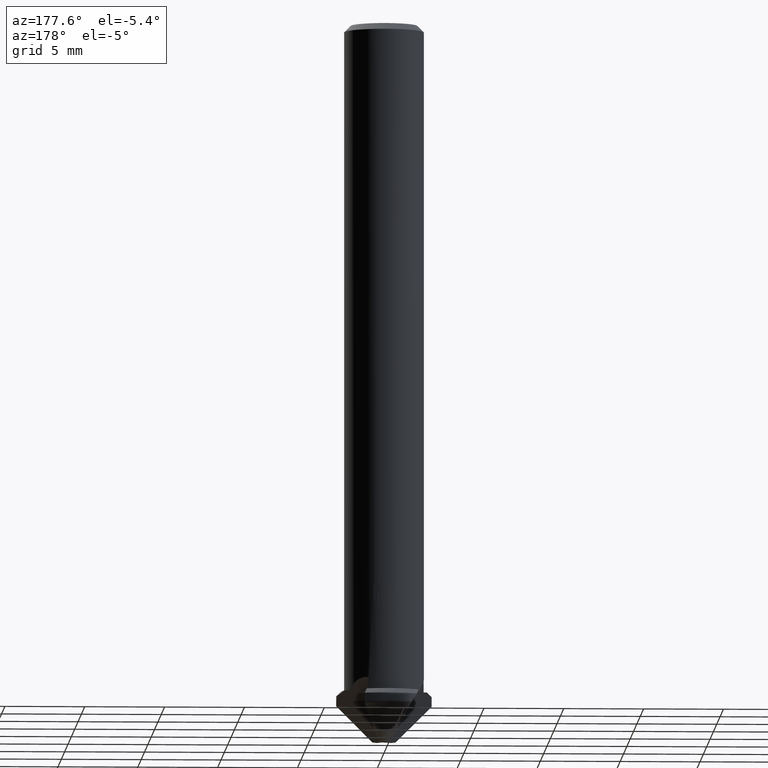
[diagram: clean part render]
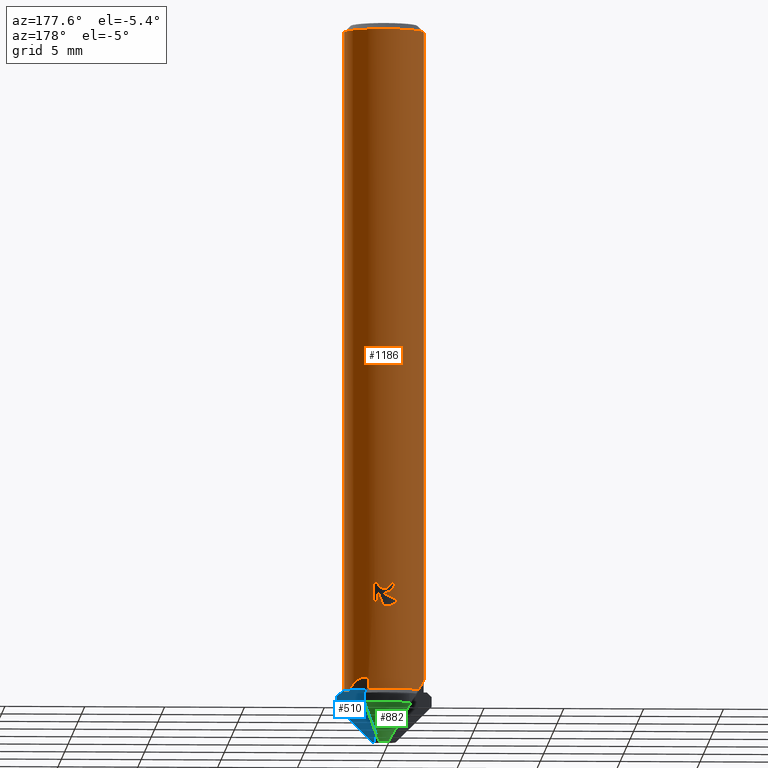
[diagram: same view with three faces highlighted in distinct colors, each labeled with its STEP entity id]
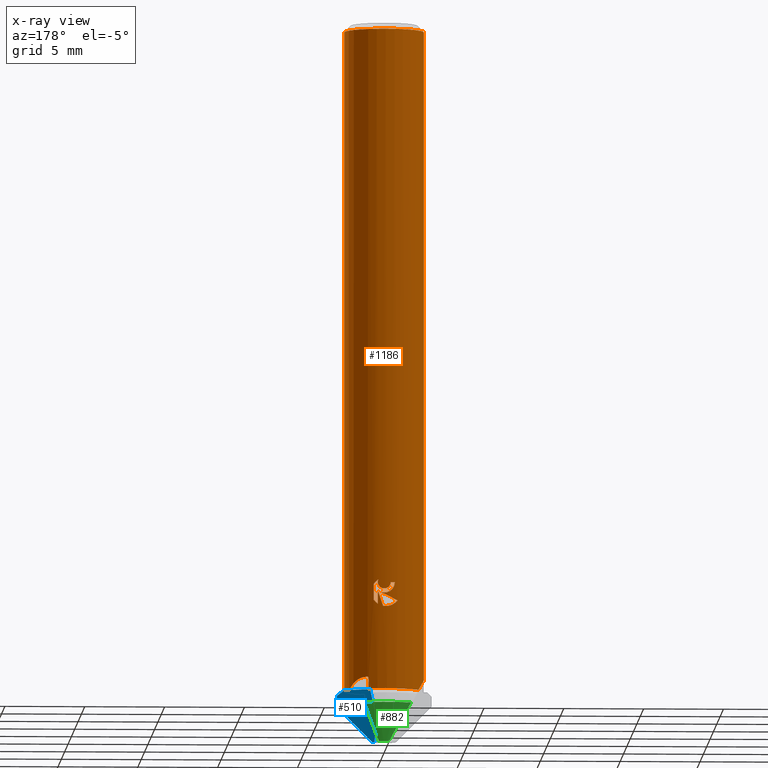
[diagram: x-ray of the same camera — body ghosted, the three highlighted faces saturated]
A machine part, auxiliary view with three faces highlighted in distinct colors.
The next image is the same camera in x-ray (body ghosted, the three faces saturated) — at least one of them is partly hidden behind the body in this view.
Their STEP definitions:

[orange] entity #1186 — the highlighted cylindrical surface (partial cylindrical patch) has radius 2.5 mm, axis along (-0, -0, 1).
#472=VERTEX_POINT('',#1338);
#482=EDGE_CURVE('',#608,#932,#1349,.T.);
#484=VERTEX_POINT('',#1351);
#494=VERTEX_POINT('',#1363);
#542=VERTEX_POINT('',#1417);
#584=EDGE_CURVE('',#798,#914,#1465,.T.);
#590=VERTEX_POINT('',#1472);
#608=VERTEX_POINT('',#1490);
#624=EDGE_CURVE('',#1290,#1196,#1507,.T.);
#626=VERTEX_POINT('',#1509);
#632=EDGE_CURVE('',#988,#798,#1515,.T.);
#634=EDGE_CURVE('',#742,#608,#1517,.T.);
#636=EDGE_CURVE('',#956,#494,#1519,.T.);
#642=EDGE_CURVE('',#932,#1290,#1525,.T.);
#656=EDGE_CURVE('',#812,#762,#1541,.T.);
#660=EDGE_CURVE('',#542,#590,#1545,.T.);
#710=VERTEX_POINT('',#1604);
#724=EDGE_CURVE('',#934,#878,#1620,.T.);
#742=VERTEX_POINT('',#1639);
#760=VERTEX_POINT('',#1660);
#762=VERTEX_POINT('',#1662);
#782=VERTEX_POINT('',#1683);
#798=VERTEX_POINT('',#1701);
#812=VERTEX_POINT('',#1716);
#814=EDGE_CURVE('',#494,#934,#1718,.T.);
#832=EDGE_CURVE('',#878,#742,#1739,.T.);
#878=VERTEX_POINT('',#1786);
#880=EDGE_CURVE('',#914,#956,#1788,.T.);
#896=VERTEX_POINT('',#1806);
#898=EDGE_CURVE('',#782,#988,#1808,.T.);
#914=VERTEX_POINT('',#1824);
#932=VERTEX_POINT('',#1842);
#934=VERTEX_POINT('',#1844);
#956=VERTEX_POINT('',#1869);
#988=VERTEX_POINT('',#1904);
#994=VERTEX_POINT('',#1911);
#1060=EDGE_CURVE('',#484,#760,#1983,.T.);
#1080=EDGE_CURVE('',#472,#760,#2004,.T.);
#1094=EDGE_CURVE('',#626,#782,#2020,.T.);
#1116=EDGE_CURVE('',#896,#542,#2042,.T.);
#1120=EDGE_CURVE('',#484,#762,#2046,.T.);
#1186=ADVANCED_FACE('',(#2119,#2120),#2121,.T.);
#1196=VERTEX_POINT('',#2131);
#1210=EDGE_CURVE('',#1196,#626,#2147,.T.);
#1224=EDGE_CURVE('',#994,#472,#2161,.T.);
#1244=EDGE_CURVE('',#710,#590,#2183,.T.);
#1248=EDGE_CURVE('',#812,#710,#2187,.T.);
#1280=EDGE_CURVE('',#896,#994,#2220,.T.);
#1290=VERTEX_POINT('',#2230);
#1338=CARTESIAN_POINT('',(1.05679381825682,2.26565373031586,-41.271066367513));
#1349=ELLIPSE('',#2315,2.78732108010715,2.5);
#1351=CARTESIAN_POINT('',(-2.09320436326517,1.36692922040889,-41.85));
#1363=CARTESIAN_POINT('',(-0.270210525197664,2.48535435543353,-35.3573798608818));
#1417=CARTESIAN_POINT('',(2.5,3.06151588455594E-016,-41.85));
#1465=B_SPLINE_CURVE_WITH_KNOTS('',3,(#2546,#2547,#2548,#2549,#2550,#2551),.UNSPECIFIED.,.F.,.F.,(4,2,4),(0.344302197119824,0.688604394239647,1.03242207268003),.UNSPECIFIED.);
#1472=CARTESIAN_POINT('',(2.5,3.06151588455594E-016,-0.399999999999999));
#1490=CARTESIAN_POINT('',(0.318403909431595,2.47964089143139,-35.7946277612708));
#1507=B_SPLINE_CURVE_WITH_KNOTS('',3,(#2670,#2671,#2672,#2673,#2674,#2675,#2676,#2677,#2678,#2679),.UNSPECIFIED.,.F.,.F.,(4,2,2,2,4),(3.09837550339328,3.44278385228406,3.78723916731241,4.13169448234076,4.47551218078378),.UNSPECIFIED.);
#1509=CARTESIAN_POINT('',(0.485311546392265,2.45244219155893,-35.7332739790272));
#1515=LINE('',#2690,#2691);
#1517=B_SPLINE_CURVE_WITH_KNOTS('',3,(#2694,#2695,#2696,#2697,#2698,#2699,#2700,#2701,#2702,#2703,#2704,#2705,#2706,#2707),.UNSPECIFIED.,.F.,.F.,(4,2,2,2,2,2,4),(1.7426107460822,1.9913632153039,2.24011568452559,2.48886815374729,2.73698656585005,2.98510497795281,3.23493590836227),.UNSPECIFIED.);
#1519=B_SPLINE_CURVE_WITH_KNOTS('',3,(#2710,#2711,#2712,#2713,#2714,#2715,#2716,#2717,#2718,#2719,#2720,#2721,#2722,#2723,#2724,#2725,#2726,#2727,#2728,#2729,#2730,#2731,#2732,#2733,#2734,#2735,#2736),.UNSPECIFIED.,.F.,.F.,(4,2,3,2,2,2,2,2,2,2,2,2,4),(-0.301503278454075,-0.150751639227038,0.0,0.150751639227038,0.301503278454075,0.452645086780626,0.603786895107177,0.754271619615112,0.904756344123047,1.05543488838393,1.20611343264482,1.35679197690571,1.5074705211666),.UNSPECIFIED.);
#1525=B_SPLINE_CURVE_WITH_KNOTS('',3,(#2745,#2746,#2747,#2748,#2749,#2750,#2751,#2752,#2753,#2754),.UNSPECIFIED.,.F.,.F.,(4,2,2,2,4),(3.09837550339328,3.44278385228406,3.78723916731241,4.13169448234076,4.47551218078378),.UNSPECIFIED.);
#1541=LINE('',#2775,#2776);
#1545=LINE('',#2808,#2809);
#1604=CARTESIAN_POINT('',(0.0,2.5,-0.399999999999999));
#1620=CIRCLE('',#2926,2.5);
#1639=CARTESIAN_POINT('',(2.94648960573711E-016,2.5,-35.8333778656602));
#1660=CARTESIAN_POINT('',(1.07510205301384,2.25702360989101,-41.85));
#1662=CARTESIAN_POINT('',(-2.5,-2.476560133496E-016,-41.1100794319298));
#1683=CARTESIAN_POINT('',(0.485311546392265,2.45244219155893,-36.5326306581503));
#1701=CARTESIAN_POINT('',(0.742894482122776,2.38707096426385,-35.2861380208401));
#1716=CARTESIAN_POINT('',(-2.5,-3.06151588455594E-016,-0.399999999999999));
#1718=B_SPLINE_CURVE_WITH_KNOTS('',3,(#3155,#3156,#3157,#3158,#3159,#3160,#3161,#3162,#3163,#3164,#3165,#3166,#3167,#3168,#3169,#3170,#3171,#3172,#3173,#3174,#3175,#3176,#3177,#3178,#3179,#3180,#3181),.UNSPECIFIED.,.F.,.F.,(4,2,3,2,2,2,2,2,2,2,2,2,4),(-0.301503278454075,-0.150751639227038,0.0,0.150751639227038,0.301503278454075,0.452645086780626,0.603786895107177,0.754271619615112,0.904756344123047,1.05543488838393,1.20611343264482,1.35679197690571,1.5074705211666),.UNSPECIFIED.);
#1739=B_SPLINE_CURVE_WITH_KNOTS('',3,(#3207,#3208,#3209,#3210,#3211,#3212,#3213,#3214,#3215,#3216,#3217,#3218,#3219,#3220),.UNSPECIFIED.,.F.,.F.,(4,2,2,2,2,2,4),(1.7426107460822,1.9913632153039,2.24011568452559,2.48886815374729,2.73698656585005,2.98510497795281,3.23493590836227),.UNSPECIFIED.);
#1786=CARTESIAN_POINT('',(-0.575040781099412,2.43296693361677,-35.1761789996285));
#1788=B_SPLINE_CURVE_WITH_KNOTS('',3,(#3343,#3344,#3345,#3346,#3347,#3348,#3349,#3350,#3351,#3352,#3353,#3354,#3355,#3356,#3357,#3358,#3359,#3360,#3361,#3362,#3363,#3364,#3365,#3366,#3367,#3368,#3369),.UNSPECIFIED.,.F.,.F.,(4,2,3,2,2,2,2,2,2,2,2,2,4),(-0.301503278454075,-0.150751639227038,0.0,0.150751639227038,0.301503278454075,0.452645086780626,0.603786895107177,0.754271619615112,0.904756344123047,1.05543488838393,1.20611343264482,1.35679197690571,1.5074705211666),.UNSPECIFIED.);
#1806=CARTESIAN_POINT('',(2.23039761168194,1.12930354369563,-41.85));
#1808=B_SPLINE_CURVE_WITH_KNOTS('',3,(#3413,#3414,#3415,#3416,#3417,#3418),.UNSPECIFIED.,.F.,.F.,(4,2,4),(4.47551170548333,4.81932937236525,5.16363155748401),.UNSPECIFIED.);
#1824=CARTESIAN_POINT('',(0.444128737768459,2.46023366050629,-35.0000001538183));
#1842=CARTESIAN_POINT('',(-0.742807086176167,2.38709816151881,-36.3178224420131));
#1844=CARTESIAN_POINT('',(-0.312407772973711,2.48040347189436,-35.1761789996285));
#1869=CARTESIAN_POINT('',(-5.97332878342138E-015,2.5,-35.5684826743449));
#1904=CARTESIAN_POINT('',(0.742894482122777,2.38707096426385,-36.2723142805034));
#1911=CARTESIAN_POINT('',(1.11945875477982,2.23535502691336,-41.1139234402125));
#1983=CIRCLE('',#3675,2.5);
#2004=ELLIPSE('',#3708,71.6342708696101,2.5);
#2020=LINE('',#3753,#3754);
#2042=CIRCLE('',#3794,2.5);
#2046=ELLIPSE('',#3799,5.00306602403646,2.5);
#2119=FACE_OUTER_BOUND('',#3966,.T.);
#2120=FACE_BOUND('',#3967,.T.);
#2121=CYLINDRICAL_SURFACE('',#3968,2.5);
#2131=CARTESIAN_POINT('',(0.161168404231131,2.49479954013897,-36.6665738361236));
#2147=ELLIPSE('',#4034,7.61998643342443,2.5);
#2161=B_SPLINE_CURVE_WITH_KNOTS('',3,(#4064,#4065,#4066,#4067,#4068,#4069,#4070,#4071,#4072,#4073,#4074,#4075,#4076,#4077),.UNSPECIFIED.,.F.,.F.,(4,2,2,2,2,2,4),(0.184157600930737,0.192742132728682,0.206598262560849,0.234310522225183,0.293125424812681,0.351940327400179,0.362202442003439),.UNSPECIFIED.);
#2183=CIRCLE('',#4106,2.5);
#2187=CIRCLE('',#4111,2.5);
#2220=ELLIPSE('',#4178,5.00306602403646,2.5);
#2230=CARTESIAN_POINT('',(-9.27653320671539E-016,2.5,-36.683902981203));
#2315=AXIS2_PLACEMENT_3D('',#4259,#4260,#4261);
#2546=CARTESIAN_POINT('',(0.819572248707612,2.36184278247904,-35.4315007254576));
#2547=CARTESIAN_POINT('',(0.773235238386737,2.37792196184694,-35.3201866872608));
#2548=CARTESIAN_POINT('',(0.703754030298735,2.40031887098004,-35.2191012528167));
#2549=CARTESIAN_POINT('',(0.544155566616611,2.44144957158242,-35.05957475698));
#2550=CARTESIAN_POINT('',(0.443078437625546,2.46298461934583,-34.990117951483));
#2551=CARTESIAN_POINT('',(0.33176973658968,2.47788798009176,-34.9438141461958));
#2670=CARTESIAN_POINT('',(-0.851106475177585,2.35066326127559,-36.1269024909624));
#2671=CARTESIAN_POINT('',(-0.804803660480817,2.36742814224895,-36.2381528911139));
#2672=CARTESIAN_POINT('',(-0.735407248289793,2.39081527433525,-36.3391384186257));
#2673=CARTESIAN_POINT('',(-0.575994604090084,2.43414329353883,-36.4986257124624));
#2674=CARTESIAN_POINT('',(-0.474957233154073,2.45704682104698,-36.5681296877785));
#2675=CARTESIAN_POINT('',(-0.252286582505711,2.48978210591063,-36.6608653102068));
#2676=CARTESIAN_POINT('',(-0.130572918570901,2.49922667773841,-36.6840401886507));
#2677=CARTESIAN_POINT('',(0.0988468623720696,2.50067267150162,-36.6840401886507));
#2678=CARTESIAN_POINT('',(0.220461194614961,2.49279132706837,-36.6609421952063));
#2679=CARTESIAN_POINT('',(0.331769901216233,2.47788795804955,-36.6146383873412));
#2690=CARTESIAN_POINT('',(0.742894482122777,2.38707096426385,-35.7792261506717));
#2691=VECTOR('',#4446,1.0);
#2694=CARTESIAN_POINT('',(-0.524781511497588,2.44430038358429,-34.9291582621933));
#2695=CARTESIAN_POINT('',(-0.558417432003994,2.4370788892112,-35.010136782394));
#2696=CARTESIAN_POINT('',(-0.575060566651156,2.4329622571431,-35.0983613221402));
#2697=CARTESIAN_POINT('',(-0.575060566651156,2.4329622571431,-35.2641963016213));
#2698=CARTESIAN_POINT('',(-0.558417432003994,2.4370788892112,-35.3524208413676));
#2699=CARTESIAN_POINT('',(-0.491145590991195,2.4515218779574,-35.5143778817689));
#2700=CARTESIAN_POINT('',(-0.440532304120222,2.4615878504116,-35.5881399013442));
#2701=CARTESIAN_POINT('',(-0.324026998725568,2.47961130516434,-35.7044707001471));
#2702=CARTESIAN_POINT('',(-0.250316671775757,2.48875757251386,-35.7549419914583));
#2703=CARTESIAN_POINT('',(-0.0885452067588335,2.49974647452028,-35.8219834671733));
#2704=CARTESIAN_POINT('',(-0.000462669095395662,2.50136764412902,-35.838538129503));
#2705=CARTESIAN_POINT('',(0.165430701833303,2.49591020226218,-35.838538129503));
#2706=CARTESIAN_POINT('',(0.253778343542199,2.48842727297033,-35.821778246351));
#2707=CARTESIAN_POINT('',(0.334735715041448,2.47748905165607,-35.7880859413538));
#2710=CARTESIAN_POINT('',(0.369548811999049,2.47253587952735,-34.8964786191432));
#2711=CARTESIAN_POINT('',(0.404861108035139,2.4672580523552,-34.9318382529565));
#2712=CARTESIAN_POINT('',(0.435531120364256,2.46185739730343,-34.976630107659));
#2713=CARTESIAN_POINT('',(0.476270835819975,2.45430138702185,-35.0749257442502));
#2714=CARTESIAN_POINT('',(0.48633387941076,2.45223966156191,-35.128439460941));
#2715=CARTESIAN_POINT('',(0.48633387941076,2.45223966156191,-35.17869000735));
#2716=CARTESIAN_POINT('',(0.48633387941076,2.45223966156191,-35.228940553759));
#2717=CARTESIAN_POINT('',(0.476270835819975,2.45430138702185,-35.2824542704499));
#2718=CARTESIAN_POINT('',(0.435531120364256,2.46185739730343,-35.3807499070411));
#2719=CARTESIAN_POINT('',(0.404861108035139,2.4672580523552,-35.4255417617436));
#2720=CARTESIAN_POINT('',(0.334145122152473,2.47782736655147,-35.4963525456982));
#2721=CARTESIAN_POINT('',(0.289305325260424,2.48369608192703,-35.527107641238));
#2722=CARTESIAN_POINT('',(0.190892767318426,2.49319147877631,-35.5679670750413));
#2723=CARTESIAN_POINT('',(0.137309222045896,2.49673474415629,-35.5780647804754));
#2724=CARTESIAN_POINT('',(0.0368278859231848,2.50023196731992,-35.5780647804754));
#2725=CARTESIAN_POINT('',(-0.0166543724400533,2.50042853478556,-35.5680454936543));
#2726=CARTESIAN_POINT('',(-0.115011831478481,2.49783756564824,-35.5273175845606));
#2727=CARTESIAN_POINT('',(-0.159890289496504,2.49513488917208,-35.4966114745342));
#2728=CARTESIAN_POINT('',(-0.230796640598874,2.48957811407573,-35.425765774382));
#2729=CARTESIAN_POINT('',(-0.261552287839775,2.48636524822382,-35.3808734168709));
#2730=CARTESIAN_POINT('',(-0.302363265727945,2.48173290383039,-35.2824513169887));
#2731=CARTESIAN_POINT('',(-0.312415666839968,2.48040247764611,-35.2289161887703));
#2732=CARTESIAN_POINT('',(-0.312415666839968,2.48040247764611,-35.1284638259297));
#2733=CARTESIAN_POINT('',(-0.302363265727943,2.48173290383039,-35.0749286977114));
#2734=CARTESIAN_POINT('',(-0.261552287839771,2.48636524822382,-34.9765065978292));
#2735=CARTESIAN_POINT('',(-0.230796640598876,2.48957811407573,-34.931614240318));
#2736=CARTESIAN_POINT('',(-0.195320648434777,2.49235828971178,-34.8961685931456));
#2745=CARTESIAN_POINT('',(-0.851106475177585,2.35066326127559,-36.1269024909624));
#2746=CARTESIAN_POINT('',(-0.804803660480817,2.36742814224895,-36.2381528911139));
#2747=CARTESIAN_POINT('',(-0.735407248289793,2.39081527433525,-36.3391384186257));
#2748=CARTESIAN_POINT('',(-0.575994604090084,2.43414329353883,-36.4986257124624));
#2749=CARTESIAN_POINT('',(-0.474957233154073,2.45704682104698,-36.5681296877785));
#2750=CARTESIAN_POINT('',(-0.252286582505711,2.48978210591063,-36.6608653102068));
#2751=CARTESIAN_POINT('',(-0.130572918570901,2.49922667773841,-36.6840401886507));
#2752=CARTESIAN_POINT('',(0.0988468623720696,2.50067267150162,-36.6840401886507));
#2753=CARTESIAN_POINT('',(0.220461194614961,2.49279132706837,-36.6609421952063));
#2754=CARTESIAN_POINT('',(0.331769901216233,2.47788795804955,-36.6146383873412));
#2775=CARTESIAN_POINT('',(-2.5,-3.06151588455594E-016,-40.925));
#2776=VECTOR('',#4466,1.0);
#2808=CARTESIAN_POINT('',(2.5,3.06151588455594E-016,-40.925));
#2809=VECTOR('',#4467,1.0);
#2926=AXIS2_PLACEMENT_3D('',#4589,#4590,#4591);
#3155=CARTESIAN_POINT('',(0.369548811999049,2.47253587952735,-34.8964786191432));
#3156=CARTESIAN_POINT('',(0.404861108035139,2.4672580523552,-34.9318382529565));
#3157=CARTESIAN_POINT('',(0.435531120364256,2.46185739730343,-34.976630107659));
#3158=CARTESIAN_POINT('',(0.476270835819975,2.45430138702185,-35.0749257442502));
#3159=CARTESIAN_POINT('',(0.48633387941076,2.45223966156191,-35.128439460941));
#3160=CARTESIAN_POINT('',(0.48633387941076,2.45223966156191,-35.17869000735));
#3161=CARTESIAN_POINT('',(0.48633387941076,2.45223966156191,-35.228940553759));
#3162=CARTESIAN_POINT('',(0.476270835819975,2.45430138702185,-35.2824542704499));
#3163=CARTESIAN_POINT('',(0.435531120364256,2.46185739730343,-35.3807499070411));
#3164=CARTESIAN_POINT('',(0.404861108035139,2.4672580523552,-35.4255417617436));
#3165=CARTESIAN_POINT('',(0.334145122152473,2.47782736655147,-35.4963525456982));
#3166=CARTESIAN_POINT('',(0.289305325260424,2.48369608192703,-35.527107641238));
#3167=CARTESIAN_POINT('',(0.190892767318426,2.49319147877631,-35.5679670750413));
#3168=CARTESIAN_POINT('',(0.137309222045896,2.49673474415629,-35.5780647804754));
#3169=CARTESIAN_POINT('',(0.0368278859231848,2.50023196731992,-35.5780647804754));
#3170=CARTESIAN_POINT('',(-0.0166543724400533,2.50042853478556,-35.5680454936543));
#3171=CARTESIAN_POINT('',(-0.115011831478481,2.49783756564824,-35.5273175845606));
#3172=CARTESIAN_POINT('',(-0.159890289496504,2.49513488917208,-35.4966114745342));
#3173=CARTESIAN_POINT('',(-0.230796640598874,2.48957811407573,-35.425765774382));
#3174=CARTESIAN_POINT('',(-0.261552287839775,2.48636524822382,-35.3808734168709));
#3175=CARTESIAN_POINT('',(-0.302363265727945,2.48173290383039,-35.2824513169887));
#3176=CARTESIAN_POINT('',(-0.312415666839968,2.48040247764611,-35.2289161887703));
#3177=CARTESIAN_POINT('',(-0.312415666839968,2.48040247764611,-35.1284638259297));
#3178=CARTESIAN_POINT('',(-0.302363265727943,2.48173290383039,-35.0749286977114));
#3179=CARTESIAN_POINT('',(-0.261552287839771,2.48636524822382,-34.9765065978292));
#3180=CARTESIAN_POINT('',(-0.230796640598876,2.48957811407573,-34.931614240318));
#3181=CARTESIAN_POINT('',(-0.195320648434777,2.49235828971178,-34.8961685931456));
#3207=CARTESIAN_POINT('',(-0.524781511497588,2.44430038358429,-34.9291582621933));
#3208=CARTESIAN_POINT('',(-0.558417432003994,2.4370788892112,-35.010136782394));
#3209=CARTESIAN_POINT('',(-0.575060566651156,2.4329622571431,-35.0983613221402));
#3210=CARTESIAN_POINT('',(-0.575060566651156,2.4329622571431,-35.2641963016213));
#3211=CARTESIAN_POINT('',(-0.558417432003994,2.4370788892112,-35.3524208413676));
#3212=CARTESIAN_POINT('',(-0.491145590991195,2.4515218779574,-35.5143778817689));
#3213=CARTESIAN_POINT('',(-0.440532304120222,2.4615878504116,-35.5881399013442));
#3214=CARTESIAN_POINT('',(-0.324026998725568,2.47961130516434,-35.7044707001471));
#3215=CARTESIAN_POINT('',(-0.250316671775757,2.48875757251386,-35.7549419914583));
#3216=CARTESIAN_POINT('',(-0.0885452067588335,2.49974647452028,-35.8219834671733));
#3217=CARTESIAN_POINT('',(-0.000462669095395662,2.50136764412902,-35.838538129503));
#3218=CARTESIAN_POINT('',(0.165430701833303,2.49591020226218,-35.838538129503));
#3219=CARTESIAN_POINT('',(0.253778343542199,2.48842727297033,-35.821778246351));
#3220=CARTESIAN_POINT('',(0.334735715041448,2.47748905165607,-35.7880859413538));
#3343=CARTESIAN_POINT('',(0.369548811999049,2.47253587952735,-34.8964786191432));
#3344=CARTESIAN_POINT('',(0.404861108035139,2.4672580523552,-34.9318382529565));
#3345=CARTESIAN_POINT('',(0.435531120364256,2.46185739730343,-34.976630107659));
#3346=CARTESIAN_POINT('',(0.476270835819975,2.45430138702185,-35.0749257442502));
#3347=CARTESIAN_POINT('',(0.48633387941076,2.45223966156191,-35.128439460941));
#3348=CARTESIAN_POINT('',(0.48633387941076,2.45223966156191,-35.17869000735));
#3349=CARTESIAN_POINT('',(0.48633387941076,2.45223966156191,-35.228940553759));
#3350=CARTESIAN_POINT('',(0.476270835819975,2.45430138702185,-35.2824542704499));
#3351=CARTESIAN_POINT('',(0.435531120364256,2.46185739730343,-35.3807499070411));
#3352=CARTESIAN_POINT('',(0.404861108035139,2.4672580523552,-35.4255417617436));
#3353=CARTESIAN_POINT('',(0.334145122152473,2.47782736655147,-35.4963525456982));
#3354=CARTESIAN_POINT('',(0.289305325260424,2.48369608192703,-35.527107641238));
#3355=CARTESIAN_POINT('',(0.190892767318426,2.49319147877631,-35.5679670750413));
#3356=CARTESIAN_POINT('',(0.137309222045896,2.49673474415629,-35.5780647804754));
#3357=CARTESIAN_POINT('',(0.0368278859231848,2.50023196731992,-35.5780647804754));
#3358=CARTESIAN_POINT('',(-0.0166543724400533,2.50042853478556,-35.5680454936543));
#3359=CARTESIAN_POINT('',(-0.115011831478481,2.49783756564824,-35.5273175845606));
#3360=CARTESIAN_POINT('',(-0.159890289496504,2.49513488917208,-35.4966114745342));
#3361=CARTESIAN_POINT('',(-0.230796640598874,2.48957811407573,-35.425765774382));
#3362=CARTESIAN_POINT('',(-0.261552287839775,2.48636524822382,-35.3808734168709));
#3363=CARTESIAN_POINT('',(-0.302363265727945,2.48173290383039,-35.2824513169887));
#3364=CARTESIAN_POINT('',(-0.312415666839968,2.48040247764611,-35.2289161887703));
#3365=CARTESIAN_POINT('',(-0.312415666839968,2.48040247764611,-35.1284638259297));
#3366=CARTESIAN_POINT('',(-0.302363265727943,2.48173290383039,-35.0749286977114));
#3367=CARTESIAN_POINT('',(-0.261552287839771,2.48636524822382,-34.9765065978292));
#3368=CARTESIAN_POINT('',(-0.230796640598876,2.48957811407573,-34.931614240318));
#3369=CARTESIAN_POINT('',(-0.195320648434777,2.49235828971178,-34.8961685931456));
#3413=CARTESIAN_POINT('',(0.331769749005721,2.47788797842935,-36.6146381461851));
#3414=CARTESIAN_POINT('',(0.443078446249926,2.46298461762336,-36.5683343424503));
#3415=CARTESIAN_POINT('',(0.544155571787289,2.44144957033601,-36.4988775392922));
#3416=CARTESIAN_POINT('',(0.703754029929931,2.40031887098883,-36.3393510488815));
#3417=CARTESIAN_POINT('',(0.773235235584424,2.37792196272201,-36.2382656179319));
#3418=CARTESIAN_POINT('',(0.81957224427909,2.36184278401576,-36.1269515835893));
#3675=AXIS2_PLACEMENT_3D('',#4966,#4967,#4968);
#3708=AXIS2_PLACEMENT_3D('',#4987,#4988,#4989);
#3753=CARTESIAN_POINT('',(0.485311546392265,2.45244219155893,-36.1329523185887));
#3754=VECTOR('',#5020,1.0);
#3794=AXIS2_PLACEMENT_3D('',#5032,#5033,#5034);
#3799=AXIS2_PLACEMENT_3D('',#5035,#5036,#5037);
#3966=EDGE_LOOP('',(#5129,#5130,#5131,#5132,#5133,#5134,#5135,#5136,#5137,#5138));
#3967=EDGE_LOOP('',(#5139,#5140,#5141,#5142,#5143,#5144,#5145,#5146,#5147,#5148,#5149,#5150,#5151,#5152));
#3968=AXIS2_PLACEMENT_3D('',#5153,#5154,#5155);
#4034=AXIS2_PLACEMENT_3D('',#5187,#5188,#5189);
#4064=CARTESIAN_POINT('',(1.11945875477982,2.23535502691336,-41.1139234402125));
#4065=CARTESIAN_POINT('',(1.11693606443682,2.23661838228915,-41.1141415635389));
#4066=CARTESIAN_POINT('',(1.11444545191005,2.23786028227054,-41.1146868102748));
#4067=CARTESIAN_POINT('',(1.1080962719998,2.24101358464992,-41.1168822783324));
#4068=CARTESIAN_POINT('',(1.10433753422275,2.24286731841524,-41.1190137653241));
#4069=CARTESIAN_POINT('',(1.0938374500817,2.24801699691509,-41.1270811254951));
#4070=CARTESIAN_POINT('',(1.08786706242935,2.2509046387973,-41.1347420055017));
#4071=CARTESIAN_POINT('',(1.0733978304308,2.25786097566766,-41.1587030992715));
#4072=CARTESIAN_POINT('',(1.0668940735108,2.26091992752144,-41.1784935888278));
#4073=CARTESIAN_POINT('',(1.05842558371533,2.26489672305205,-41.2196343927208));
#4074=CARTESIAN_POINT('',(1.05662864158571,2.26573076815864,-41.2410271209171));
#4075=CARTESIAN_POINT('',(1.05662864158571,2.26573076815864,-41.264052793314));
#4076=CARTESIAN_POINT('',(1.05668194620784,2.26570591202757,-41.2675362337877));
#4077=CARTESIAN_POINT('',(1.05679381825682,2.26565373031586,-41.271066367513));
#4106=AXIS2_PLACEMENT_3D('',#5220,#5221,#5222);
#4111=AXIS2_PLACEMENT_3D('',#5223,#5224,#5225);
#4178=AXIS2_PLACEMENT_3D('',#5252,#5253,#5254);
#4259=CARTESIAN_POINT('',(0.0,0.0,-35.9516061872687));
#4260=DIRECTION('',(-0.442195774284071,0.0,0.896918556617774));
#4261=DIRECTION('',(-0.896918556617774,0.0,-0.442195774284071));
#4446=DIRECTION('',(-0.0,-0.0,1.0));
#4466=DIRECTION('',(0.0,0.0,-1.0));
#4467=DIRECTION('',(-0.0,-0.0,1.0));
#4589=CARTESIAN_POINT('',(0.0,0.0,-35.1761789996285));
#4590=DIRECTION('',(0.0,0.0,1.0));
#4591=DIRECTION('',(-1.0,0.0,0.0));
#4966=CARTESIAN_POINT('',(0.0,0.0,-41.85));
#4967=DIRECTION('',(0.0,0.0,-1.0));
#4968=DIRECTION('',(-1.0,0.0,0.0));
#4987=CARTESIAN_POINT('',(0.0,0.0,-45.01));
#4988=DIRECTION('',(-0.882409725041803,0.469185573394539,-0.0348994967025007));
#4989=DIRECTION('',(-0.030814426605461,0.016384321257364,0.999390827019096));
#5020=DIRECTION('',(0.0,0.0,-1.0));
#5032=CARTESIAN_POINT('',(0.0,0.0,-41.85));
#5033=DIRECTION('',(0.0,0.0,-1.0));
#5034=DIRECTION('',(-1.0,0.0,0.0));
#5035=CARTESIAN_POINT('',(0.0,0.0,-45.4432782267687));
#5036=DIRECTION('',(0.866108656975691,0.0127324361655803,0.499693585491204));
#5037=DIRECTION('',(-0.49963959942913,-0.00734507068401933,0.866202240021893));
#5129=ORIENTED_EDGE('',*,*,#656,.F.);
#5130=ORIENTED_EDGE('',*,*,#1248,.T.);
#5131=ORIENTED_EDGE('',*,*,#1244,.T.);
#5132=ORIENTED_EDGE('',*,*,#660,.F.);
#5133=ORIENTED_EDGE('',*,*,#1116,.F.);
#5134=ORIENTED_EDGE('',*,*,#1280,.T.);
#5135=ORIENTED_EDGE('',*,*,#1224,.T.);
#5136=ORIENTED_EDGE('',*,*,#1080,.T.);
#5137=ORIENTED_EDGE('',*,*,#1060,.F.);
#5138=ORIENTED_EDGE('',*,*,#1120,.T.);
#5139=ORIENTED_EDGE('',*,*,#482,.T.);
#5140=ORIENTED_EDGE('',*,*,#642,.T.);
#5141=ORIENTED_EDGE('',*,*,#624,.T.);
#5142=ORIENTED_EDGE('',*,*,#1210,.T.);
#5143=ORIENTED_EDGE('',*,*,#1094,.T.);
#5144=ORIENTED_EDGE('',*,*,#898,.T.);
#5145=ORIENTED_EDGE('',*,*,#632,.T.);
#5146=ORIENTED_EDGE('',*,*,#584,.T.);
#5147=ORIENTED_EDGE('',*,*,#880,.T.);
#5148=ORIENTED_EDGE('',*,*,#636,.T.);
#5149=ORIENTED_EDGE('',*,*,#814,.T.);
#5150=ORIENTED_EDGE('',*,*,#724,.T.);
#5151=ORIENTED_EDGE('',*,*,#832,.T.);
#5152=ORIENTED_EDGE('',*,*,#634,.T.);
#5153=CARTESIAN_POINT('',(0.0,0.0,-40.925));
#5154=DIRECTION('',(-0.0,-0.0,1.0));
#5155=DIRECTION('',(-1.0,0.0,0.0));
#5187=CARTESIAN_POINT('',(0.0,0.0,-37.1306232916651));
#5188=DIRECTION('',(0.944648353914092,0.0,-0.328084573619969));
#5189=DIRECTION('',(-0.328084573619969,0.0,-0.944648353914092));
#5220=CARTESIAN_POINT('',(0.0,0.0,-0.399999999999999));
#5221=DIRECTION('',(0.0,0.0,-1.0));
#5222=DIRECTION('',(0.0,1.0,0.0));
#5223=CARTESIAN_POINT('',(0.0,0.0,-0.399999999999999));
#5224=DIRECTION('',(0.0,0.0,-1.0));
#5225=DIRECTION('',(0.0,1.0,0.0));
#5252=CARTESIAN_POINT('',(0.0,0.0,-45.4432782267687));
#5253=DIRECTION('',(-0.422027715316389,-0.75643831746136,0.499693585491204));
#5254=DIRECTION('',(-0.243458781909612,-0.436373121184318,-0.866202240021893));

[blue] entity #510 — the highlighted planar face has unit normal (-0.422, -0.7564, 0.4997).
#474=VERTEX_POINT('',#1340);
#510=ADVANCED_FACE('',(#1380),#1381,.F.);
#516=EDGE_CURVE('',#1266,#1070,#1387,.T.);
#548=EDGE_CURVE('',#754,#980,#1423,.T.);
#556=EDGE_CURVE('',#670,#854,#1433,.T.);
#560=VERTEX_POINT('',#1437);
#580=EDGE_CURVE('',#1070,#670,#1461,.T.);
#670=VERTEX_POINT('',#1557);
#754=VERTEX_POINT('',#1653);
#774=EDGE_CURVE('',#1288,#1266,#1675,.T.);
#780=EDGE_CURVE('',#980,#1288,#1681,.T.);
#820=EDGE_CURVE('',#1064,#754,#1724,.T.);
#854=VERTEX_POINT('',#1761);
#980=VERTEX_POINT('',#1896);
#1004=EDGE_CURVE('',#474,#1064,#1921,.T.);
#1040=EDGE_CURVE('',#560,#1074,#1961,.T.);
#1062=EDGE_CURVE('',#1074,#474,#1985,.T.);
#1064=VERTEX_POINT('',#1987);
#1070=VERTEX_POINT('',#1993);
#1074=VERTEX_POINT('',#1997);
#1266=VERTEX_POINT('',#2205);
#1288=VERTEX_POINT('',#2228);
#1294=EDGE_CURVE('',#560,#854,#2234,.T.);
#1340=CARTESIAN_POINT('',(0.598992471401178,-0.0347565706695547,-44.99));
#1380=FACE_OUTER_BOUND('',#2400,.T.);
#1381=PLANE('',#2401);
#1387=(B_SPLINE_CURVE(2,(#2409,#2410,#2411),.UNSPECIFIED.,.F.,.F.)B_SPLINE_CURVE_WITH_KNOTS((3,3),(0.0,0.66067462479535),.UNSPECIFIED.)RATIONAL_B_SPLINE_CURVE((1.0,1.00169448352188,1.0))BOUNDED_CURVE()REPRESENTATION_ITEM('')GEOMETRIC_REPRESENTATION_ITEM()CURVE());
#1423=(B_SPLINE_CURVE(2,(#2474,#2475,#2476),.UNSPECIFIED.,.F.,.F.)B_SPLINE_CURVE_WITH_KNOTS((3,3),(0.0,3.19557728387752),.UNSPECIFIED.)RATIONAL_B_SPLINE_CURVE((1.0,1.20879147207735,1.0))BOUNDED_CURVE()REPRESENTATION_ITEM('')GEOMETRIC_REPRESENTATION_ITEM()CURVE());
#1433=LINE('',#2495,#2496);
#1437=CARTESIAN_POINT('',(0.328168773412019,0.502299966312213,-44.4057318701355));
#1461=(B_SPLINE_CURVE(2,(#2533,#2534,#2535),.UNSPECIFIED.,.F.,.F.)B_SPLINE_CURVE_WITH_KNOTS((3,3),(0.0,0.0251933624838409),.UNSPECIFIED.)RATIONAL_B_SPLINE_CURVE((1.0,1.00000275108883,1.0))BOUNDED_CURVE()REPRESENTATION_ITEM('')GEOMETRIC_REPRESENTATION_ITEM()CURVE());
#1557=CARTESIAN_POINT('',(2.52078212903208,0.967293883963141,-41.85));
#1653=CARTESIAN_POINT('',(0.740304884632136,-0.120202653006491,-45.0));
#1675=ELLIPSE('',#3071,6.00367922884375,3.0);
#1681=(B_SPLINE_CURVE(2,(#3089,#3090,#3091),.UNSPECIFIED.,.F.,.F.)B_SPLINE_CURVE_WITH_KNOTS((3,3),(0.0,3.19557728387752),.UNSPECIFIED.)RATIONAL_B_SPLINE_CURVE((1.0,1.20879147207735,1.0))BOUNDED_CURVE()REPRESENTATION_ITEM('')GEOMETRIC_REPRESENTATION_ITEM()CURVE());
#1724=LINE('',#3190,#3191);
#1761=CARTESIAN_POINT('',(0.942519537422883,1.84782907147388,-41.85));
#1896=CARTESIAN_POINT('',(1.97341383376221,2.5848823789605E-016,-43.7765861662378));
#1921=(B_SPLINE_CURVE(2,(#3586,#3587,#3588),.UNSPECIFIED.,.F.,.F.)B_SPLINE_CURVE_WITH_KNOTS((3,3),(0.0,2.05390842824059),.UNSPECIFIED.)RATIONAL_B_SPLINE_CURVE((1.0,3.72611473754672,1.0))BOUNDED_CURVE()REPRESENTATION_ITEM('')GEOMETRIC_REPRESENTATION_ITEM()CURVE());
#1961=ELLIPSE('',#3643,1.20073584576875,0.6);
#1985=ELLIPSE('',#3678,1.20073584576875,0.6);
#1987=CARTESIAN_POINT('',(0.735658108451723,-0.117610150366504,-45.0));
#1993=CARTESIAN_POINT('',(2.53752647109425,0.951346103421865,-41.86));
#1997=CARTESIAN_POINT('',(0.6,-3.61267347978871E-016,-44.9365344210804));
#2205=CARTESIAN_POINT('',(2.95319392226246,0.527868977599616,-42.15));
#2228=CARTESIAN_POINT('',(2.99811055850996,0.106456934725098,-42.75));
#2234=LINE('',#4227,#4228);
#2400=EDGE_LOOP('',(#4290,#4291,#4292,#4293,#4294,#4295,#4296,#4297,#4298,#4299,#4300));
#2401=AXIS2_PLACEMENT_3D('',#4301,#4302,#4303);
#2409=CARTESIAN_POINT('',(2.95319392226246,0.527868977599616,-42.15));
#2410=CARTESIAN_POINT('',(2.74504143328393,0.753170033901088,-41.9847382576289));
#2411=CARTESIAN_POINT('',(2.53752647109425,0.951346103421863,-41.86));
#2474=CARTESIAN_POINT('',(0.740304884632137,-0.120202653006492,-45.0));
#2475=CARTESIAN_POINT('',(1.23846766095794,-0.0777981611269906,-44.5150730610232));
#2476=CARTESIAN_POINT('',(2.99811055850997,0.106456934725101,-42.75));
#2495=CARTESIAN_POINT('',(5.61620406386152,-0.759686118161134,-41.85));
#2496=VECTOR('',#4381,1.0);
#2533=CARTESIAN_POINT('',(2.53752647109425,0.951346103421863,-41.86));
#2534=CARTESIAN_POINT('',(2.52915497072433,0.959340857254535,-41.854967850227));
#2535=CARTESIAN_POINT('',(2.52078212903208,0.967293883963142,-41.85));
#3071=AXIS2_PLACEMENT_3D('',#4649,#4650,#4651);
#3089=CARTESIAN_POINT('',(0.740304884632137,-0.120202653006492,-45.0));
#3090=CARTESIAN_POINT('',(1.23846766095794,-0.0777981611269906,-44.5150730610232));
#3091=CARTESIAN_POINT('',(2.99811055850997,0.106456934725101,-42.75));
#3190=CARTESIAN_POINT('',(5.07498305773305,-2.53858136783018,-45.0));
#3191=VECTOR('',#4692,1.0);
#3586=CARTESIAN_POINT('',(-0.776574119798067,0.712027131828415,-45.0212820071702));
#3587=CARTESIAN_POINT('',(0.137764308606409,0.246927388952013,-44.9531264574469));
#3588=CARTESIAN_POINT('',(1.01379051303047,-0.286842806584627,-45.0212820071702));
#3643=AXIS2_PLACEMENT_3D('',#4939,#4940,#4941);
#3678=AXIS2_PLACEMENT_3D('',#4969,#4970,#4971);
#4227=CARTESIAN_POINT('',(0.157537284685265,0.128588972872554,-45.1155679431642));
#4228=VECTOR('',#5261,1.0);
#4290=ORIENTED_EDGE('',*,*,#1040,.F.);
#4291=ORIENTED_EDGE('',*,*,#1294,.T.);
#4292=ORIENTED_EDGE('',*,*,#556,.F.);
#4293=ORIENTED_EDGE('',*,*,#580,.F.);
#4294=ORIENTED_EDGE('',*,*,#516,.F.);
#4295=ORIENTED_EDGE('',*,*,#774,.F.);
#4296=ORIENTED_EDGE('',*,*,#780,.F.);
#4297=ORIENTED_EDGE('',*,*,#548,.F.);
#4298=ORIENTED_EDGE('',*,*,#820,.F.);
#4299=ORIENTED_EDGE('',*,*,#1004,.F.);
#4300=ORIENTED_EDGE('',*,*,#1062,.F.);
#4301=CARTESIAN_POINT('',(10.6800132247352,-5.46692315380792,-44.6990793028196));
#4302=DIRECTION('',(-0.422027715316389,-0.75643831746136,0.499693585491204));
#4303=DIRECTION('',(0.88238762893187,-0.469225181055408,0.0349256606453176));
#4381=DIRECTION('',(-0.873281414560002,0.487216144010113,0.0));
#4649=CARTESIAN_POINT('',(0.0,0.0,-45.4432782267687));
#4650=DIRECTION('',(-0.422027715316389,-0.756438317461361,0.499693585491204));
#4651=DIRECTION('',(-0.243458781909612,-0.436373121184318,-0.866202240021893));
#4692=DIRECTION('',(0.873281414560002,-0.487216144010113,0.0));
#4939=CARTESIAN_POINT('',(0.0,0.0,-45.4432782267687));
#4940=DIRECTION('',(0.422027715316389,0.75643831746136,-0.499693585491204));
#4941=DIRECTION('',(-0.243458781909612,-0.436373121184318,-0.866202240021893));
#4969=CARTESIAN_POINT('',(0.0,0.0,-45.4432782267687));
#4970=DIRECTION('',(0.422027715316389,0.75643831746136,-0.499693585491204));
#4971=DIRECTION('',(-0.243458781909612,-0.436373121184318,-0.866202240021893));
#5261=DIRECTION('',(0.208049705149566,0.455663034862107,0.865497844507676));

[green] entity #882 — the highlighted conical surface has half-angle 45 deg.
#466=VERTEX_POINT('',#1332);
#664=VERTEX_POINT('',#1549);
#818=EDGE_CURVE('',#466,#864,#1722,.T.);
#856=EDGE_CURVE('',#664,#466,#1763,.T.);
#864=VERTEX_POINT('',#1772);
#882=ADVANCED_FACE('',(#1790),#1791,.T.);
#1072=VERTEX_POINT('',#1995);
#1166=EDGE_CURVE('',#664,#1072,#2098,.T.);
#1282=EDGE_CURVE('',#864,#1072,#2222,.T.);
#1332=CARTESIAN_POINT('',(-1.59124968913594,2.54321143966143,-42.75));
#1549=CARTESIAN_POINT('',(-0.266053891210158,0.701224163140385,-45.0));
#1722=CIRCLE('',#3187,3.0);
#1763=(B_SPLINE_CURVE(2,(#3292,#3293,#3294),.UNSPECIFIED.,.F.,.F.)B_SPLINE_CURVE_WITH_KNOTS((3,3),(0.0,3.19557728387752),.UNSPECIFIED.)RATIONAL_B_SPLINE_CURVE((1.0,1.20879147207731,1.0))BOUNDED_CURVE()REPRESENTATION_ITEM('')GEOMETRIC_REPRESENTATION_ITEM()CURVE());
#1772=CARTESIAN_POINT('',(1.3382441990993,2.6849771812023,-42.75));
#1790=FACE_OUTER_BOUND('',#3371,.T.);
#1791=CONICAL_SURFACE('',#3372,1.875,0.785398163397448);
#1995=CARTESIAN_POINT('',(0.351795301828989,0.662374565945169,-45.0));
#2098=CIRCLE('',#3942,0.75);
#2222=(B_SPLINE_CURVE(2,(#4182,#4183,#4184),.UNSPECIFIED.,.F.,.F.)B_SPLINE_CURVE_WITH_KNOTS((3,3),(0.0,3.18221664788696),.UNSPECIFIED.)RATIONAL_B_SPLINE_CURVE((1.0,1.24976587973853,1.0))BOUNDED_CURVE()REPRESENTATION_ITEM('')GEOMETRIC_REPRESENTATION_ITEM()CURVE());
#3187=AXIS2_PLACEMENT_3D('',#4689,#4690,#4691);
#3292=CARTESIAN_POINT('',(-0.266053891210158,0.701224163140385,-45.0));
#3293=CARTESIAN_POINT('',(-0.551858646575252,1.11144353671853,-44.5150730610233));
#3294=CARTESIAN_POINT('',(-1.59124968913594,2.54321143966143,-42.75));
#3371=EDGE_LOOP('',(#4743,#4744,#4745,#4746));
#3372=AXIS2_PLACEMENT_3D('',#4747,#4748,#4749);
#3942=AXIS2_PLACEMENT_3D('',#5108,#5109,#5110);
#4182=CARTESIAN_POINT('',(1.3382441990993,2.6849771812023,-42.75));
#4183=CARTESIAN_POINT('',(0.549233797145799,1.06718405014599,-44.5498754114121));
#4184=CARTESIAN_POINT('',(0.351795301828989,0.662374565945169,-45.0));
#4689=CARTESIAN_POINT('',(0.0,0.0,-42.75));
#4690=DIRECTION('',(0.0,0.0,-1.0));
#4691=DIRECTION('',(-1.0,0.0,0.0));
#4743=ORIENTED_EDGE('',*,*,#856,.T.);
#4744=ORIENTED_EDGE('',*,*,#818,.T.);
#4745=ORIENTED_EDGE('',*,*,#1282,.T.);
#4746=ORIENTED_EDGE('',*,*,#1166,.F.);
#4747=CARTESIAN_POINT('',(0.0,0.0,-43.875));
#4748=DIRECTION('',(-0.0,-0.0,1.0));
#4749=DIRECTION('',(-1.0,0.0,0.0));
#5108=CARTESIAN_POINT('',(0.0,0.0,-45.0));
#5109=DIRECTION('',(0.0,0.0,-1.0));
#5110=DIRECTION('',(-1.0,0.0,0.0));